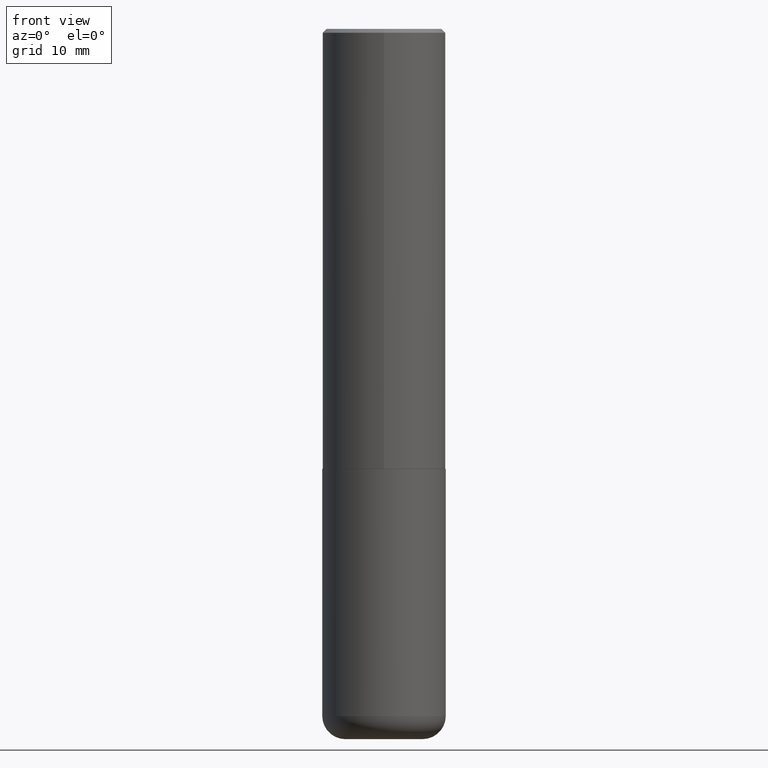
[diagram: clean part render]
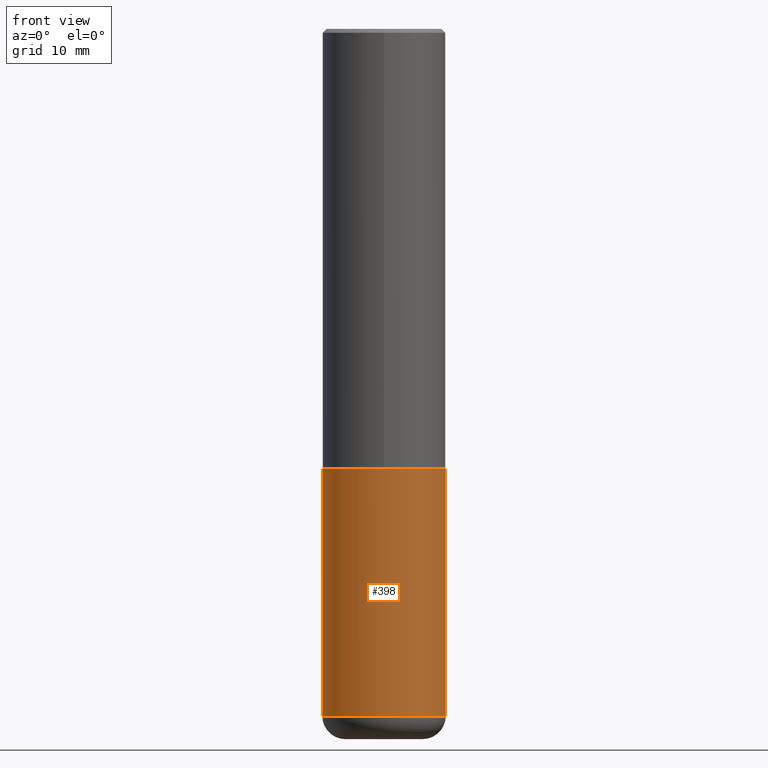
[diagram: same view with one face highlighted and labeled with its STEP entity id]
A machine part, front view. The second image highlights one B-rep face of the part: STEP entity #398.
In plain terms, the highlighted cylindrical surface (partial cylindrical patch) has radius 7.9997 mm, axis along (-0, 0, 1).
Its self-contained STEP definition (entity closure, byte-faithful):
#1 = EDGE_LOOP ( 'NONE', ( #324, #160, #65, #389 ) ) ;
#7 = CYLINDRICAL_SURFACE ( 'NONE', #52, 0.3149500000000000077 ) ;
#9 = DIRECTION ( 'NONE',  ( 1.000000000000000000, -6.982962677686266711E-15, 4.876176775795936353E-29 ) ) ;
#28 = DIRECTION ( 'NONE',  ( -2.445468806185136597E-29, 3.491481338843145583E-15, 1.000000000000000000 ) ) ;
#33 = VERTEX_POINT ( 'NONE', #300 ) ;
#41 = EDGE_CURVE ( 'NONE', #33, #197, #117, .T. ) ;
#42 = DIRECTION ( 'NONE',  ( -2.445468806185136597E-29, 3.491481338843145583E-15, 1.000000000000000000 ) ) ;
#52 = AXIS2_PLACEMENT_3D ( 'NONE', #322, #42, #9 ) ;
#54 = CARTESIAN_POINT ( 'NONE',  ( -0.3149500000000000077, 2.237854346276435590E-15, -1.549218606675782676E-29 ) ) ;
#65 = ORIENTED_EDGE ( 'NONE', *, *, #41, .T. ) ;
#105 = DIRECTION ( 'NONE',  ( -2.445468806185136597E-29, 3.491481338843145583E-15, 1.000000000000000000 ) ) ;
#110 = EDGE_CURVE ( 'NONE', #258, #285, #340, .T. ) ;
#117 = LINE ( 'NONE', #183, #157 ) ;
#157 = VECTOR ( 'NONE', #308, 39.37007874015748143 ) ;
#160 = ORIENTED_EDGE ( 'NONE', *, *, #381, .T. ) ;
#179 = DIRECTION ( 'NONE',  ( -2.445468806185136877E-29, 3.491481338843145188E-15, 1.000000000000000000 ) ) ;
#183 = CARTESIAN_POINT ( 'NONE',  ( 0.3149500000000000077, -2.199284095337289871E-15, 1.535751875536930130E-29 ) ) ;
#197 = VERTEX_POINT ( 'NONE', #311 ) ;
#199 = CIRCLE ( 'NONE', #301, 0.3149500000000000077 ) ;
#217 = EDGE_CURVE ( 'NONE', #285, #197, #199, .T. ) ;
#220 = CARTESIAN_POINT ( 'NONE',  ( 5.487632001079445967E-29, -7.834884124364017250E-15, -2.243999999999999773 ) ) ;
#224 = VECTOR ( 'NONE', #179, 39.37007874015748143 ) ;
#258 = VERTEX_POINT ( 'NONE', #282 ) ;
#282 = CARTESIAN_POINT ( 'NONE',  ( -0.3149500000000001743, -9.995947116896060296E-15, -3.503899999999999793 ) ) ;
#285 = VERTEX_POINT ( 'NONE', #349 ) ;
#290 = CIRCLE ( 'NONE', #316, 0.3149500000000000077 ) ;
#292 = FACE_OUTER_BOUND ( 'NONE', #1, .T. ) ;
#293 = DIRECTION ( 'NONE',  ( 1.000000000000000000, -6.982962677686263555E-15, 0.000000000000000000 ) ) ;
#300 = CARTESIAN_POINT ( 'NONE',  ( 0.3149500000000001743, -1.443308555850978931E-14, -3.503899999999999793 ) ) ;
#301 = AXIS2_PLACEMENT_3D ( 'NONE', #220, #28, #319 ) ;
#308 = DIRECTION ( 'NONE',  ( -2.445468806185136877E-29, 3.491481338843145188E-15, 1.000000000000000000 ) ) ;
#311 = CARTESIAN_POINT ( 'NONE',  ( 0.3149500000000000077, -1.003416821970130712E-14, -2.243999999999999773 ) ) ;
#316 = AXIS2_PLACEMENT_3D ( 'NONE', #362, #105, #293 ) ;
#319 = DIRECTION ( 'NONE',  ( 1.000000000000000000, -6.982962677686266711E-15, 0.000000000000000000 ) ) ;
#322 = CARTESIAN_POINT ( 'NONE',  ( 0.000000000000000000, 0.000000000000000000, 0.000000000000000000 ) ) ;
#324 = ORIENTED_EDGE ( 'NONE', *, *, #110, .F. ) ;
#340 = LINE ( 'NONE', #54, #224 ) ;
#349 = CARTESIAN_POINT ( 'NONE',  ( -0.3149500000000000077, -7.796488447491823147E-15, -2.243999999999999773 ) ) ;
#362 = CARTESIAN_POINT ( 'NONE',  ( 8.568678149992099474E-29, -1.223380146317249786E-14, -3.503899999999999793 ) ) ;
#381 = EDGE_CURVE ( 'NONE', #258, #33, #290, .T. ) ;
#389 = ORIENTED_EDGE ( 'NONE', *, *, #217, .F. ) ;
#398 = ADVANCED_FACE ( 'NONE', ( #292 ), #7, .T. ) ;